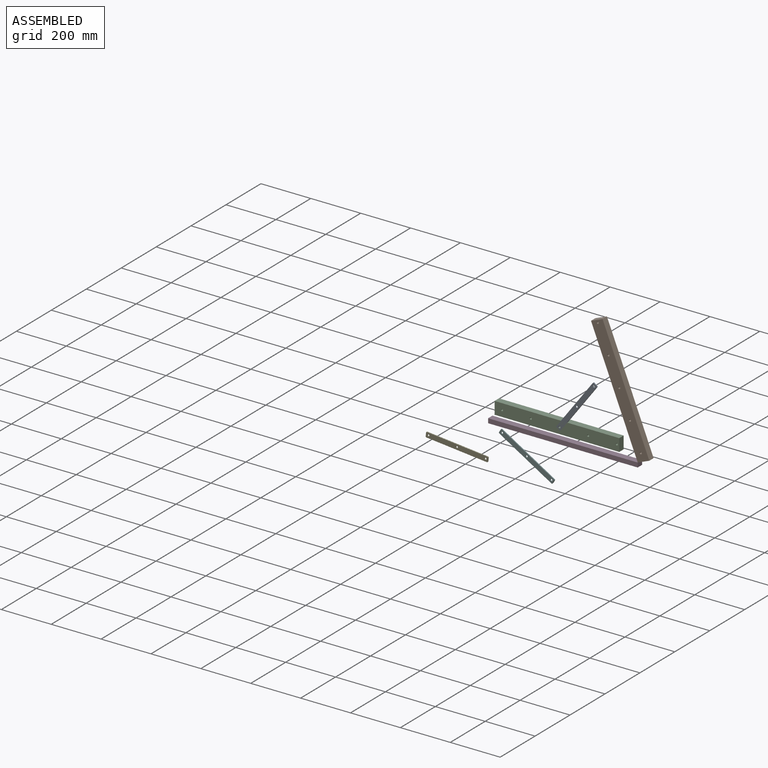
[diagram: assembled view]
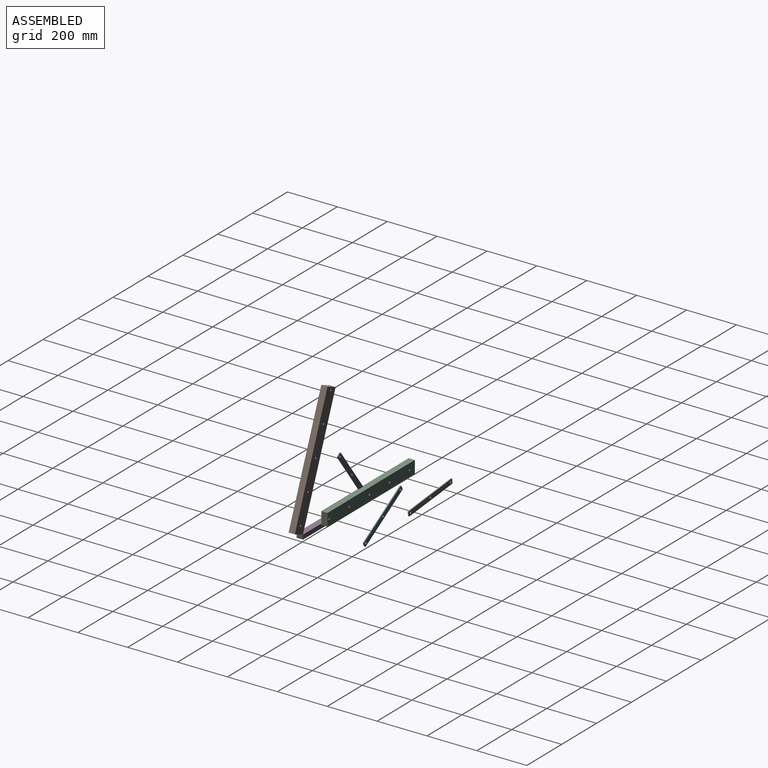
[diagram: assembled view, second angle]
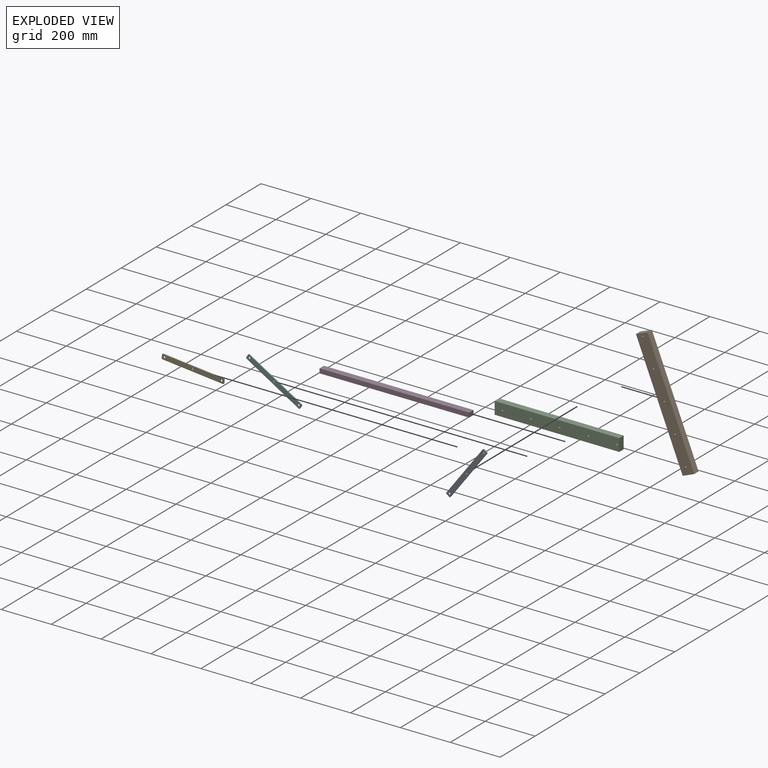
[diagram: exploded view]
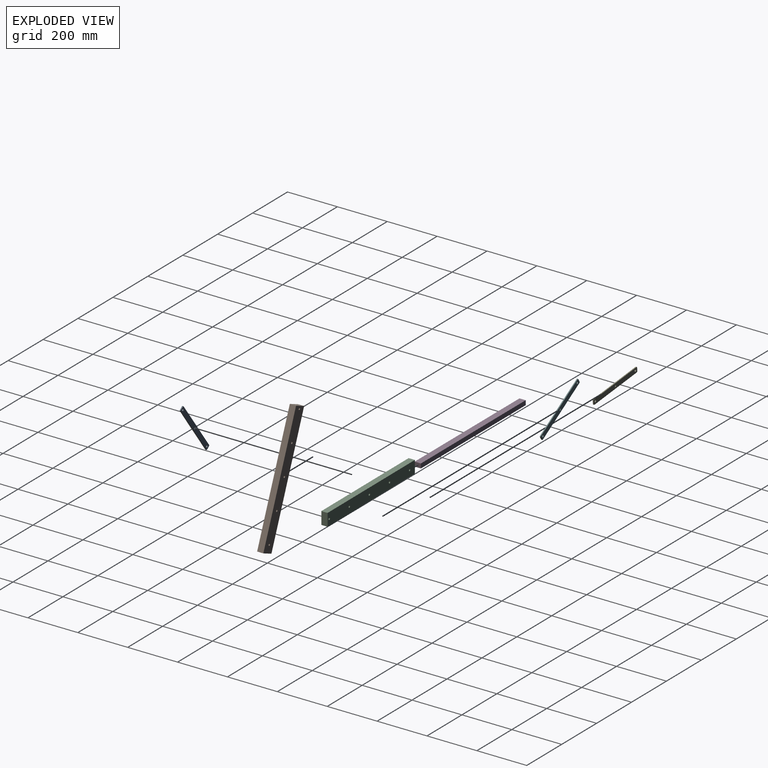
[diagram: exploded view, second angle]
ASSEMBLY  parts=6 mates=2
PART A: 13 faces, bbox 250x4x20 mm
  f0: plane 244x4mm, normal (0,0,1), area 976mm2, adj f1,f10,f11,f12
  f1: cylinder r=3mm len=4mm, axis (0,1,0), area 18.8mm2, adj f0,f2,f11,f12
  f2: plane 14x4mm, normal (-1,0,0), area 56mm2, adj f1,f3,f11,f12
  f3: cylinder r=3mm len=4mm, axis (0,1,0), area 18.8mm2, adj f2,f4,f11,f12
  f4: plane 244x4mm, normal (0,0,-1), area 976mm2, adj f3,f5,f11,f12
  f5: cylinder r=3mm len=4mm, axis (0,1,0), area 18.8mm2, adj f4,f6,f11,f12
  f6: plane 14x4mm, normal (1,0,0), area 56mm2, adj f5,f10,f11,f12
  f7: cylinder r=4mm len=8mm, axis (0,1,0), area 100.5mm2, adj f11,f12
  f8: cylinder r=4mm len=8mm, axis (0,1,0), area 100.5mm2, adj f11,f12
  f9: cylinder r=4mm len=8mm, axis (0,1,0), area 100.5mm2, adj f11,f12
  f10: cylinder r=3mm len=4mm, axis (0,1,0), area 18.8mm2, adj f0,f6,f11,f12
  f11: plane 250x20mm, normal (0,-1,0), area 4841.5mm2, adj f0,f1,f2,f3,f4,f5,f6,f7
  f12: plane 250x20mm, normal (0,1,0), area 4841.5mm2, adj f0,f1,f2,f3,f4,f5,f6,f7
PART B: 11 faces, bbox 500x25x50 mm
  f0: plane 500x25mm, normal (0,0,1), area 12500mm2, adj f1,f8,f9,f10
  f1: plane 50x25mm, normal (-1,0,0), area 1250mm2, adj f0,f2,f9,f10
  f2: plane 500x25mm, normal (0,0,-1), area 12500mm2, adj f1,f8,f9,f10
  f3: cylinder r=4mm len=25mm, axis (0,1,0), area 628.3mm2, adj f9,f10
  f4: cylinder r=4mm len=25mm, axis (0,1,0), area 628.3mm2, adj f9,f10
  f5: cylinder r=4mm len=25mm, axis (0,1,0), area 628.3mm2, adj f9,f10
  f6: cylinder r=4mm len=25mm, axis (0,1,0), area 628.3mm2, adj f9,f10
  f7: cylinder r=4mm len=25mm, axis (0,1,0), area 628.3mm2, adj f9,f10
  f8: plane 50x25mm, normal (1,0,0), area 1250mm2, adj f0,f2,f9,f10
  f9: plane 500x50mm, normal (0,-1,0), area 24748.7mm2, adj f0,f1,f2,f3,f4,f5,f6,f7
  f10: plane 500x50mm, normal (0,1,0), area 24748.7mm2, adj f0,f1,f2,f3,f4,f5,f6,f7
PART C: same geometry as B
PART D: 6 faces, bbox 600x25x18 mm
  f0: plane 600x25mm, normal (0,0,1), area 15000mm2, adj f1,f3,f4,f5
  f1: plane 25x18mm, normal (-1,0,0), area 450mm2, adj f0,f2,f4,f5
  f2: plane 600x25mm, normal (0,0,-1), area 15000mm2, adj f1,f3,f4,f5
  f3: plane 25x18mm, normal (1,0,0), area 450mm2, adj f0,f2,f4,f5
  f4: plane 600x18mm, normal (0,-1,0), area 10800mm2, adj f0,f1,f2,f3
  f5: plane 600x18mm, normal (0,1,0), area 10800mm2, adj f0,f1,f2,f3
PART E: same geometry as A
PART F: same geometry as A
PLACE A rot(axis=(0,1,0),126.7deg) t=(99.48,23.12,233.38)mm
PLACE B rot(axis=(0,-1,0),112deg) t=(244.37,12.5,-13.48)mm
PLACE C rot(axis=(0,1,0),0.1deg) t=(-295.87,44.12,120.64)mm
PLACE D t=(-264.19,12.5,139.27)mm fixed
PLACE E rot(axis=(0,1,0),5.8deg) t=(-562.44,8.5,-136.08)mm
PLACE F rot(axis=(0,1,0),30.9deg) t=(-272.39,12.5,-44.34)mm
MATE revolute B.f9 <-> D.f4  axis (0,-1,0) through (300,-12.5,9)mm
MATE revolute A.f9 <-> C.f5  axis (0,-1,0) through (-36.05,19.12,35.06)mm
